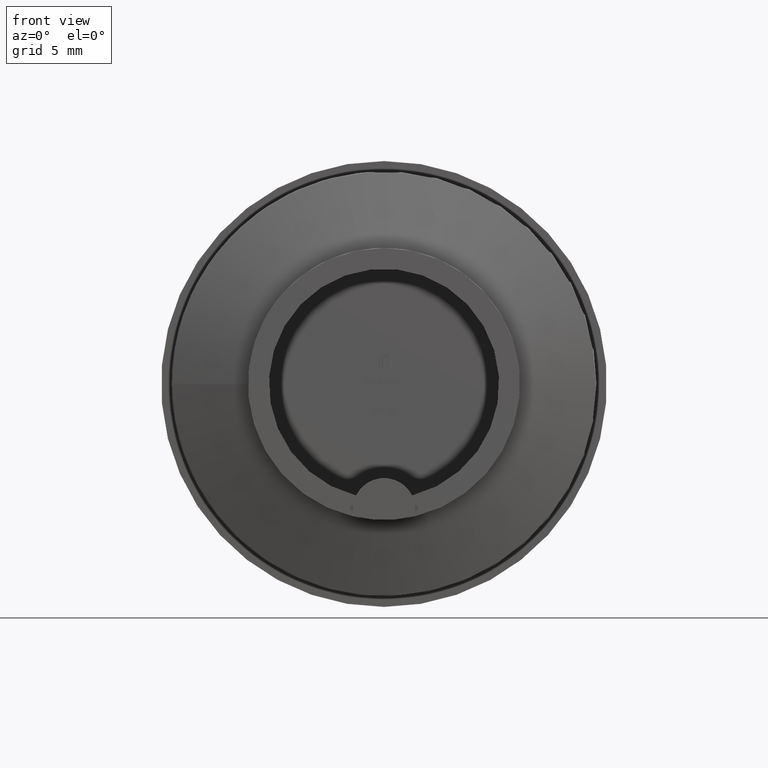
[diagram: clean part render]
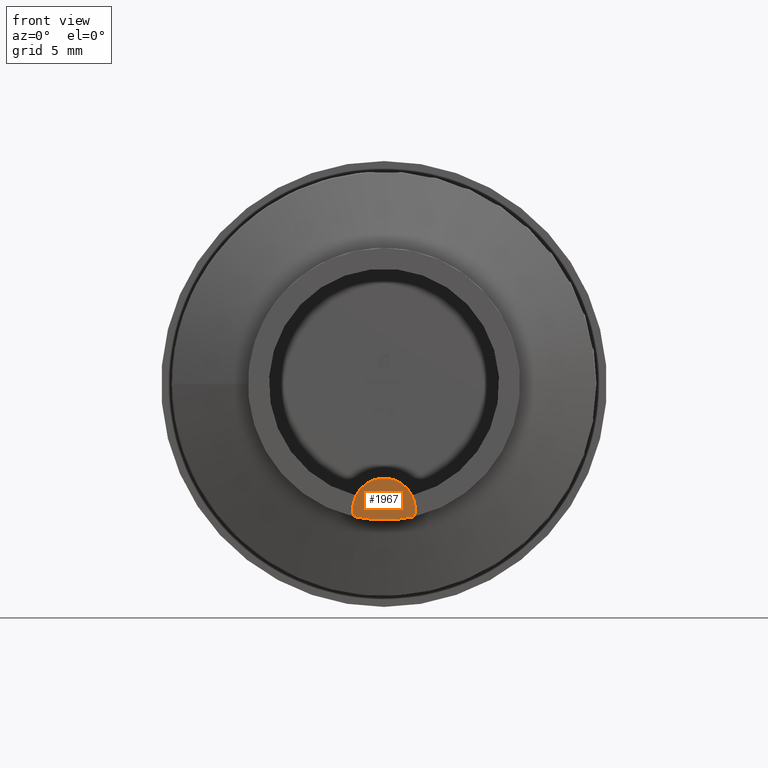
[diagram: same view with one face highlighted and labeled with its STEP entity id]
A machine part, front view. The second image highlights one B-rep face of the part: STEP entity #1967.
In plain terms, the highlighted planar face has unit normal (0, -1, 0).
Its self-contained STEP definition (entity closure, byte-faithful):
#244 = ORIENTED_EDGE ( 'NONE', *, *, #624, .T. ) ;
#624 = EDGE_CURVE ( 'NONE', #7324, #8690, #8908, .T. ) ;
#1255 = DIRECTION ( 'NONE',  ( 0.000000000000000000, -1.000000000000000000, 0.000000000000000000 ) ) ;
#1967 = ADVANCED_FACE ( 'NONE', ( #3502 ), #9502, .T. ) ;
#2534 = DIRECTION ( 'NONE',  ( 0.000000000000000000, 0.000000000000000000, -1.000000000000000000 ) ) ;
#2955 = CIRCLE ( 'NONE', #9328, 1.500000000000003109 ) ;
#3283 = CARTESIAN_POINT ( 'NONE',  ( 0.000000000000000000, -1.800000000000000044, 0.000000000000000000 ) ) ;
#3502 = FACE_OUTER_BOUND ( 'NONE', #9190, .T. ) ;
#3948 = AXIS2_PLACEMENT_3D ( 'NONE', #3283, #6280, #2534 ) ;
#4328 = DIRECTION ( 'NONE',  ( 0.000000000000000000, -0.000000000000000000, -1.000000000000000000 ) ) ;
#4462 = DIRECTION ( 'NONE',  ( 0.000000000000000000, -1.000000000000000000, 0.000000000000000000 ) ) ;
#5961 = ORIENTED_EDGE ( 'NONE', *, *, #9107, .T. ) ;
#6280 = DIRECTION ( 'NONE',  ( 0.000000000000000000, -1.000000000000000000, 0.000000000000000000 ) ) ;
#7324 = VERTEX_POINT ( 'NONE', #9313 ) ;
#7725 = CARTESIAN_POINT ( 'NONE',  ( 1.462494064565357021, -1.800000000000000044, -6.333333333333333925 ) ) ;
#8317 = CARTESIAN_POINT ( 'NONE',  ( 0.000000000000000000, -1.800000000000000044, -6.000000000000000000 ) ) ;
#8690 = VERTEX_POINT ( 'NONE', #7725 ) ;
#8717 = CARTESIAN_POINT ( 'NONE',  ( 0.000000000000000000, -1.800000000000000044, -3.000000000000000000 ) ) ;
#8908 = CIRCLE ( 'NONE', #3948, 6.500000000000001776 ) ;
#9107 = EDGE_CURVE ( 'NONE', #8690, #7324, #2955, .T. ) ;
#9190 = EDGE_LOOP ( 'NONE', ( #244, #5961 ) ) ;
#9313 = CARTESIAN_POINT ( 'NONE',  ( -1.462494064565357021, -1.800000000000000044, -6.333333333333333925 ) ) ;
#9328 = AXIS2_PLACEMENT_3D ( 'NONE', #8317, #4462, #9878 ) ;
#9502 = PLANE ( 'NONE',  #9578 ) ;
#9578 = AXIS2_PLACEMENT_3D ( 'NONE', #8717, #1255, #4328 ) ;
#9878 = DIRECTION ( 'NONE',  ( 0.000000000000000000, 0.000000000000000000, -1.000000000000000000 ) ) ;